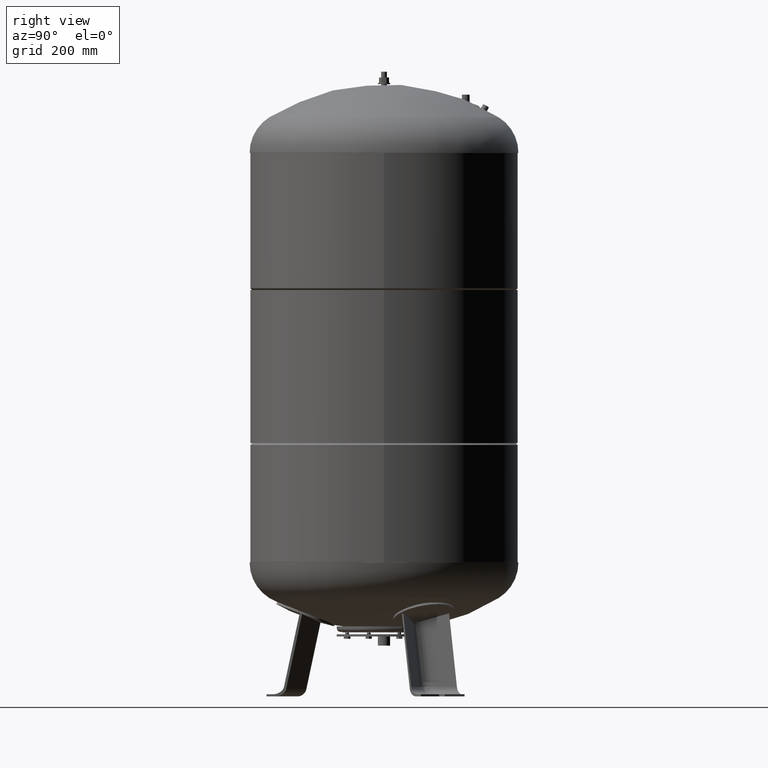
[diagram: clean part render]
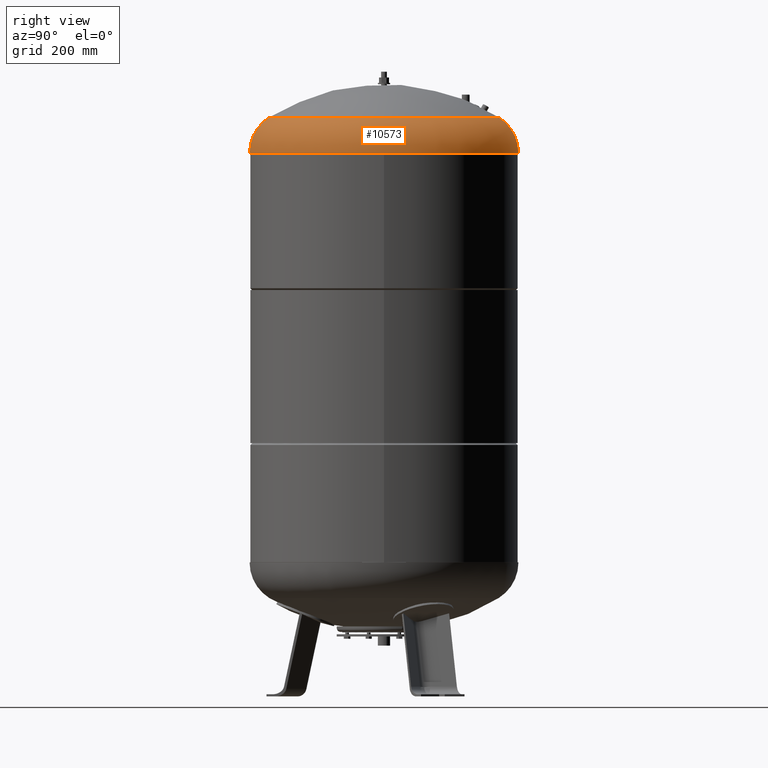
[diagram: same view with one face highlighted and labeled with its STEP entity id]
A machine part, right view. The second image highlights one B-rep face of the part: STEP entity #10573.
In plain terms, the highlighted toroidal blend (fillet) surface has major radius 254.5 mm and minor (blend) radius 115.5 mm.
Its self-contained STEP definition (entity closure, byte-faithful):
#10478=CARTESIAN_POINT('',(370.0,-4.531193E-014,1496.206120388130300));
#10479=VERTEX_POINT('',#10478);
#10503=CARTESIAN_POINT('',(6.750178E-014,370.0,1496.206120388130300));
#10504=VERTEX_POINT('',#10503);
#10512=CARTESIAN_POINT('',(-2.312058E-014,3.155444E-030,1496.206120388130600));
#10513=DIRECTION('',(0.0,0.0,-1.0));
#10514=DIRECTION('',(1.0,0.0,0.0));
#10515=AXIS2_PLACEMENT_3D('',#10512,#10513,#10514);
#10516=CIRCLE('',#10515,370.0);
#10517=EDGE_CURVE('',#10504,#10479,#10516,.T.);
#10522=CARTESIAN_POINT('',(-2.312058E-014,0.0,1496.206120388130300));
#10523=DIRECTION('',(-1.224647E-016,2.465190E-032,-1.0));
#10524=DIRECTION('',(0.0,-1.0,0.0));
#10525=AXIS2_PLACEMENT_3D('',#10522,#10523,#10524);
#10526=TOROIDAL_SURFACE('',#10525,254.500000000000030,115.500000000000000);
#10527=CARTESIAN_POINT('',(-6.843251E-014,-370.0,1496.206120388130300));
#10528=VERTEX_POINT('',#10527);
#10529=CARTESIAN_POINT('',(-4.983290E-014,-315.931034482758610,1594.014494274920300));
#10530=VERTEX_POINT('',#10529);
#10531=CARTESIAN_POINT('',(-5.428784E-014,-254.500000000000030,1496.206120388130300));
#10532=DIRECTION('',(-1.0,0.0,0.0));
#10533=DIRECTION('',(0.0,-1.0,0.0));
#10534=AXIS2_PLACEMENT_3D('',#10531,#10532,#10533);
#10535=CIRCLE('',#10534,115.500000000000000);
#10536=EDGE_CURVE('',#10528,#10530,#10535,.T.);
#10537=ORIENTED_EDGE('',*,*,#10536,.F.);
#10538=CARTESIAN_POINT('',(-2.312058E-014,3.155444E-030,1496.206120388130600));
#10539=DIRECTION('',(0.0,0.0,-1.0));
#10540=DIRECTION('',(1.0,0.0,0.0));
#10541=AXIS2_PLACEMENT_3D('',#10538,#10539,#10540);
#10542=CIRCLE('',#10541,370.0);
#10543=EDGE_CURVE('',#10479,#10528,#10542,.T.);
#10544=ORIENTED_EDGE('',*,*,#10543,.F.);
#10545=ORIENTED_EDGE('',*,*,#10517,.F.);
#10546=CARTESIAN_POINT('',(6.623700E-014,315.931034482758610,1594.014494274920300));
#10547=VERTEX_POINT('',#10546);
#10548=CARTESIAN_POINT('',(3.921291E-014,254.500000000000030,1496.206120388130300));
#10549=DIRECTION('',(1.0,0.0,0.0));
#10550=DIRECTION('',(0.0,1.0,0.0));
#10551=AXIS2_PLACEMENT_3D('',#10548,#10549,#10550);
#10552=CIRCLE('',#10551,115.500000000000000);
#10553=EDGE_CURVE('',#10504,#10547,#10552,.T.);
#10554=ORIENTED_EDGE('',*,*,#10553,.T.);
#10555=CARTESIAN_POINT('',(315.931034482758610,-3.869039E-014,1594.014494274920500));
#10556=VERTEX_POINT('',#10555);
#10557=CARTESIAN_POINT('',(-1.114251E-014,1.577722E-030,1594.014494274920500));
#10558=DIRECTION('',(0.0,0.0,-1.0));
#10559=DIRECTION('',(1.0,0.0,0.0));
#10560=AXIS2_PLACEMENT_3D('',#10557,#10558,#10559);
#10561=CIRCLE('',#10560,315.931034482758610);
#10562=EDGE_CURVE('',#10547,#10556,#10561,.T.);
#10563=ORIENTED_EDGE('',*,*,#10562,.T.);
#10564=CARTESIAN_POINT('',(-1.114251E-014,1.577722E-030,1594.014494274920500));
#10565=DIRECTION('',(0.0,0.0,-1.0));
#10566=DIRECTION('',(1.0,0.0,0.0));
#10567=AXIS2_PLACEMENT_3D('',#10564,#10565,#10566);
#10568=CIRCLE('',#10567,315.931034482758610);
#10569=EDGE_CURVE('',#10556,#10530,#10568,.T.);
#10570=ORIENTED_EDGE('',*,*,#10569,.T.);
#10571=EDGE_LOOP('',(#10537,#10544,#10545,#10554,#10563,#10570));
#10572=FACE_OUTER_BOUND('',#10571,.T.);
#10573=ADVANCED_FACE('',(#10572),#10526,.T.);